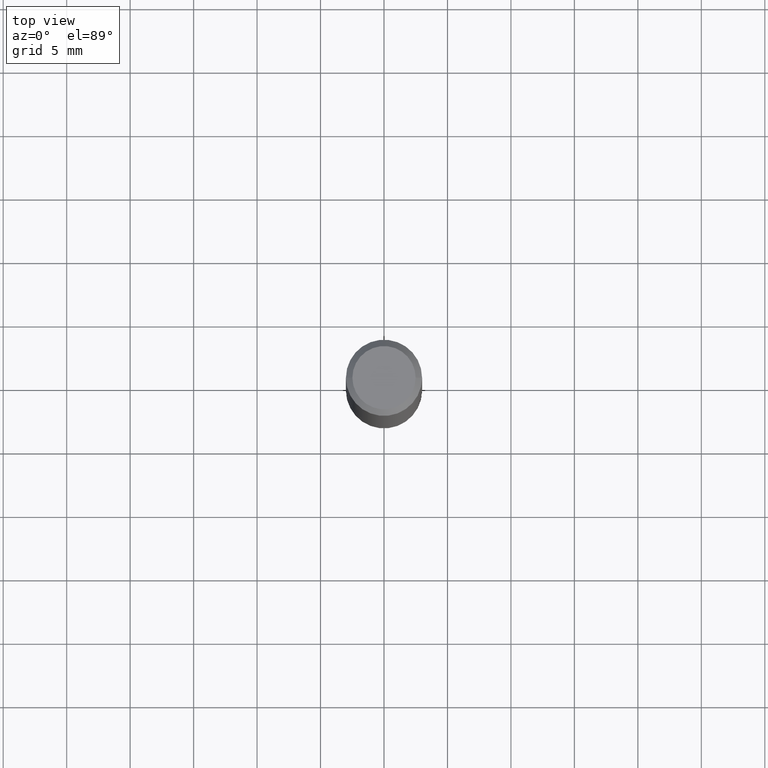
[diagram: clean part render]
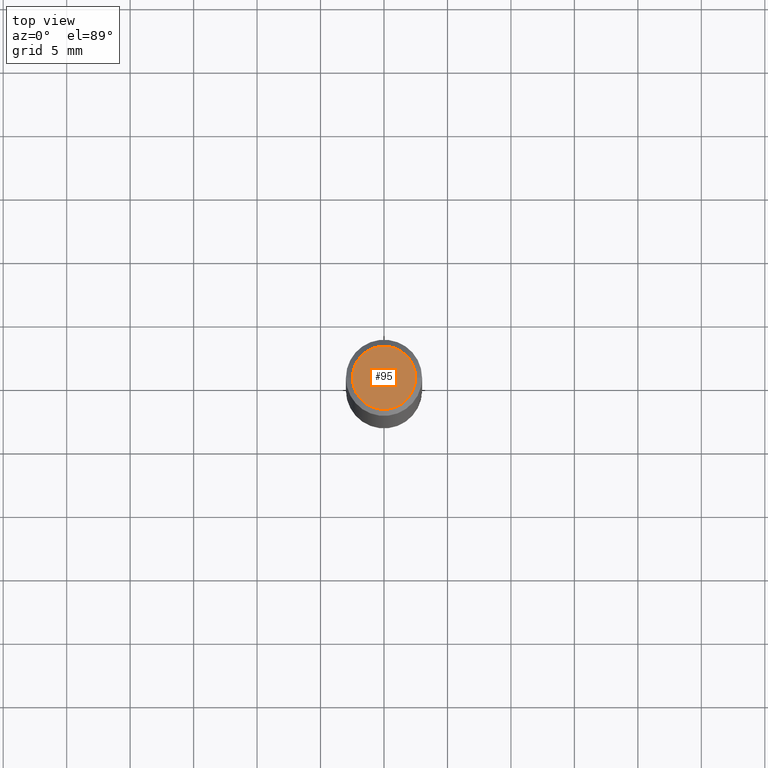
[diagram: same view with one face highlighted and labeled with its STEP entity id]
A machine part, top view. The second image highlights one B-rep face of the part: STEP entity #95.
In plain terms, the highlighted planar face has unit normal (0, -0, -1).
Its self-contained STEP definition (entity closure, byte-faithful):
#14 = VERTEX_POINT ( 'NONE', #207 ) ;
#29 = AXIS2_PLACEMENT_3D ( 'NONE', #250, #58, #320 ) ;
#41 = ORIENTED_EDGE ( 'NONE', *, *, #315, .T. ) ;
#58 = DIRECTION ( 'NONE',  ( -2.445468806185136597E-29, 3.491481338843145583E-15, 1.000000000000000000 ) ) ;
#70 = AXIS2_PLACEMENT_3D ( 'NONE', #166, #331, #305 ) ;
#95 = ADVANCED_FACE ( 'NONE', ( #323 ), #245, .F. ) ;
#111 = EDGE_CURVE ( 'NONE', #115, #14, #312, .T. ) ;
#115 = VERTEX_POINT ( 'NONE', #156 ) ;
#156 = CARTESIAN_POINT ( 'NONE',  ( -0.09809999999999981235, 7.199434520694526251E-16, 4.268512490095498617E-18 ) ) ;
#166 = CARTESIAN_POINT ( 'NONE',  ( -1.043851414335219820E-46, 1.490343170380447200E-32, 4.268512490100411279E-18 ) ) ;
#195 = AXIS2_PLACEMENT_3D ( 'NONE', #218, #269, #349 ) ;
#206 = ORIENTED_EDGE ( 'NONE', *, *, #111, .T. ) ;
#207 = CARTESIAN_POINT ( 'NONE',  ( 0.09809999999999981235, -7.765346469475324764E-16, 4.268512490105521927E-18 ) ) ;
#218 = CARTESIAN_POINT ( 'NONE',  ( 6.850286386810214690E-16, 0.09809999999999981235, -3.403800630954617044E-16 ) ) ;
#245 = PLANE ( 'NONE',  #195 ) ;
#250 = CARTESIAN_POINT ( 'NONE',  ( -1.043851414335219820E-46, 1.490343170380447200E-32, 4.268512490100411279E-18 ) ) ;
#269 = DIRECTION ( 'NONE',  ( 2.438088387897960049E-29, -3.491481338843145188E-15, -1.000000000000000000 ) ) ;
#305 = DIRECTION ( 'NONE',  ( 1.000000000000000000, -6.982962677686267499E-15, 4.876195163481341571E-29 ) ) ;
#312 = CIRCLE ( 'NONE', #29, 0.09809999999999981235 ) ;
#315 = EDGE_CURVE ( 'NONE', #14, #115, #327, .T. ) ;
#320 = DIRECTION ( 'NONE',  ( 1.000000000000000000, -6.982962677686267499E-15, 4.876195163481341571E-29 ) ) ;
#323 = FACE_OUTER_BOUND ( 'NONE', #359, .T. ) ;
#327 = CIRCLE ( 'NONE', #70, 0.09809999999999981235 ) ;
#331 = DIRECTION ( 'NONE',  ( -2.445468806185136597E-29, 3.491481338843145583E-15, 1.000000000000000000 ) ) ;
#349 = DIRECTION ( 'NONE',  ( -1.000000000000000000, 6.982962677686265922E-15, -4.876176775795935793E-29 ) ) ;
#359 = EDGE_LOOP ( 'NONE', ( #206, #41 ) ) ;